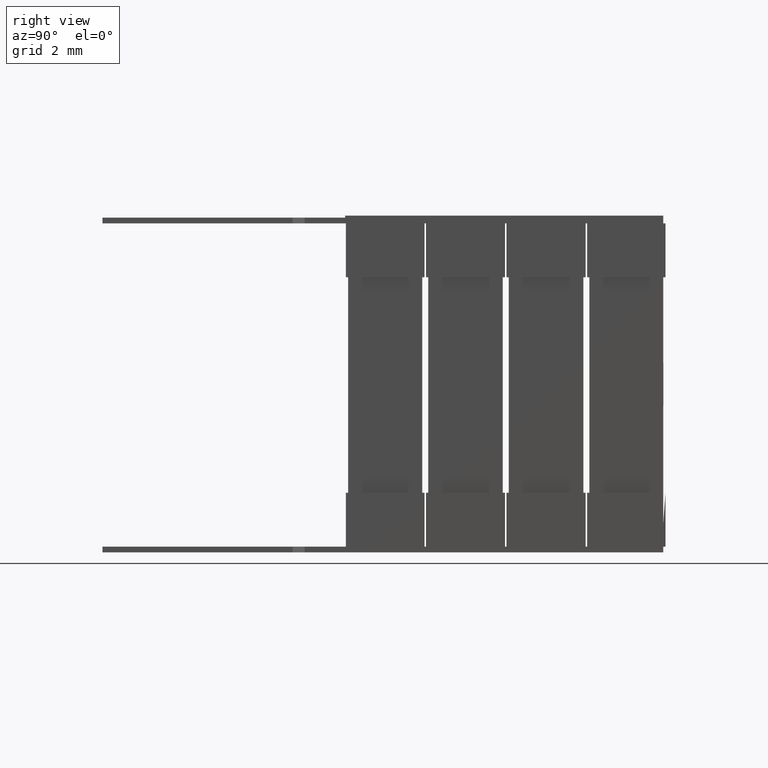
[diagram: clean part render]
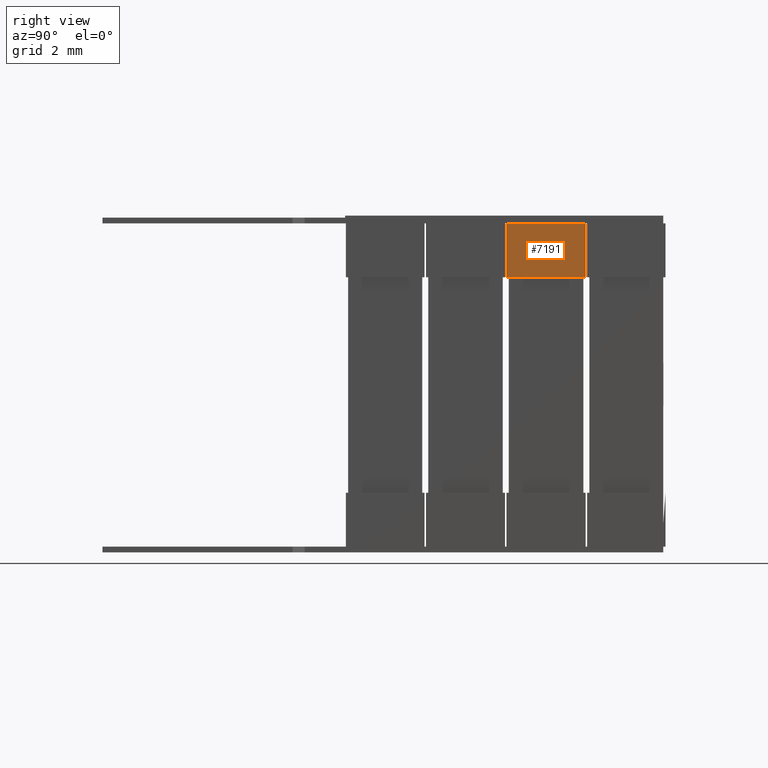
[diagram: same view with one face highlighted and labeled with its STEP entity id]
A machine part, right view. The second image highlights one B-rep face of the part: STEP entity #7191.
In plain terms, the highlighted planar face has unit normal (-1, 0, 0).
Its self-contained STEP definition (entity closure, byte-faithful):
#33 = VERTEX_POINT ( 'NONE', #3411 ) ;
#326 = LINE ( 'NONE', #3095, #1232 ) ;
#921 = VECTOR ( 'NONE', #7090, 1000.000000000000000 ) ;
#1018 = CARTESIAN_POINT ( 'NONE',  ( 10.79500000000000000, 8.027499999999998100, -1.800694310536910600 ) ) ;
#1232 = VECTOR ( 'NONE', #7649, 1000.000000000000000 ) ;
#1377 = CARTESIAN_POINT ( 'NONE',  ( 10.79500000000000000, 10.72000000000000100, 0.0000000000000000000 ) ) ;
#1745 = EDGE_CURVE ( 'NONE', #33, #4526, #5025, .T. ) ;
#1759 = EDGE_LOOP ( 'NONE', ( #3648, #3209, #5276, #3931 ) ) ;
#2571 = EDGE_CURVE ( 'NONE', #5742, #8177, #6326, .T. ) ;
#2755 = VECTOR ( 'NONE', #3432, 1000.000000000000000 ) ;
#3057 = PLANE ( 'NONE',  #8179 ) ;
#3095 = CARTESIAN_POINT ( 'NONE',  ( 10.79500000000000000, 5.462499999999998600, -1.800000000000000000 ) ) ;
#3209 = ORIENTED_EDGE ( 'NONE', *, *, #1745, .F. ) ;
#3411 = CARTESIAN_POINT ( 'NONE',  ( 10.79500000000000000, 8.027499999999998100, -6.123233995736881900E-018 ) ) ;
#3432 = DIRECTION ( 'NONE',  ( 0.0000000000000000000, -9.637352644315594700E-016, 1.000000000000000000 ) ) ;
#3479 = EDGE_CURVE ( 'NONE', #33, #8177, #4252, .T. ) ;
#3519 = FACE_OUTER_BOUND ( 'NONE', #1759, .T. ) ;
#3648 = ORIENTED_EDGE ( 'NONE', *, *, #3837, .F. ) ;
#3837 = EDGE_CURVE ( 'NONE', #4526, #5742, #326, .T. ) ;
#3931 = ORIENTED_EDGE ( 'NONE', *, *, #2571, .F. ) ;
#4252 = LINE ( 'NONE', #1377, #921 ) ;
#4526 = VERTEX_POINT ( 'NONE', #6689 ) ;
#4943 = CARTESIAN_POINT ( 'NONE',  ( 10.79500000000000000, 10.72000000000000100, 0.0000000000000000000 ) ) ;
#5025 = LINE ( 'NONE', #1018, #6962 ) ;
#5200 = CARTESIAN_POINT ( 'NONE',  ( 10.79500000000000000, 5.387500000000002000, -1.800000000000000000 ) ) ;
#5276 = ORIENTED_EDGE ( 'NONE', *, *, #3479, .T. ) ;
#5686 = DIRECTION ( 'NONE',  ( 0.0000000000000000000, 0.0000000000000000000, 1.000000000000000000 ) ) ;
#5742 = VERTEX_POINT ( 'NONE', #7028 ) ;
#6092 = CARTESIAN_POINT ( 'NONE',  ( 10.79500000000000000, 5.387500000000000200, 0.0000000000000000000 ) ) ;
#6326 = LINE ( 'NONE', #5200, #2755 ) ;
#6689 = CARTESIAN_POINT ( 'NONE',  ( 10.79500000000000000, 8.027499999999998100, -1.799999998505076300 ) ) ;
#6962 = VECTOR ( 'NONE', #8193, 1000.000000000000000 ) ;
#7028 = CARTESIAN_POINT ( 'NONE',  ( 10.79500000000000000, 5.387500000000002000, -1.800000000000000000 ) ) ;
#7090 = DIRECTION ( 'NONE',  ( -0.0000000000000000000, -1.000000000000000000, -0.0000000000000000000 ) ) ;
#7191 = ADVANCED_FACE ( 'NONE', ( #3519 ), #3057, .F. ) ;
#7649 = DIRECTION ( 'NONE',  ( 0.0000000000000000000, -1.000000000000000000, 0.0000000000000000000 ) ) ;
#8177 = VERTEX_POINT ( 'NONE', #6092 ) ;
#8179 = AXIS2_PLACEMENT_3D ( 'NONE', #4943, #8256, #5686 ) ;
#8193 = DIRECTION ( 'NONE',  ( -0.0000000000000000000, -0.0000000000000000000, -1.000000000000000000 ) ) ;
#8256 = DIRECTION ( 'NONE',  ( -1.000000000000000000, 0.0000000000000000000, 0.0000000000000000000 ) ) ;